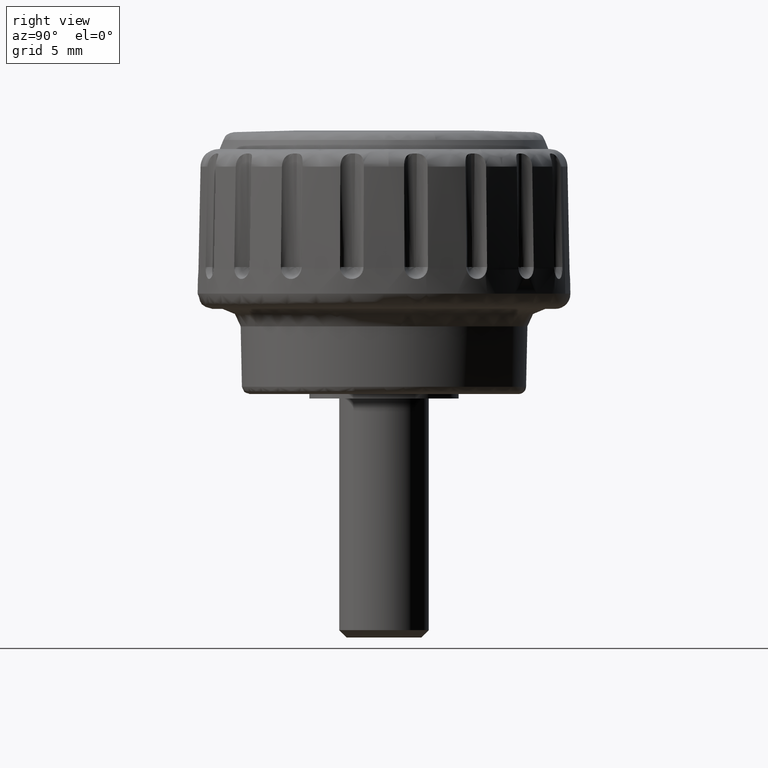
[diagram: clean part render]
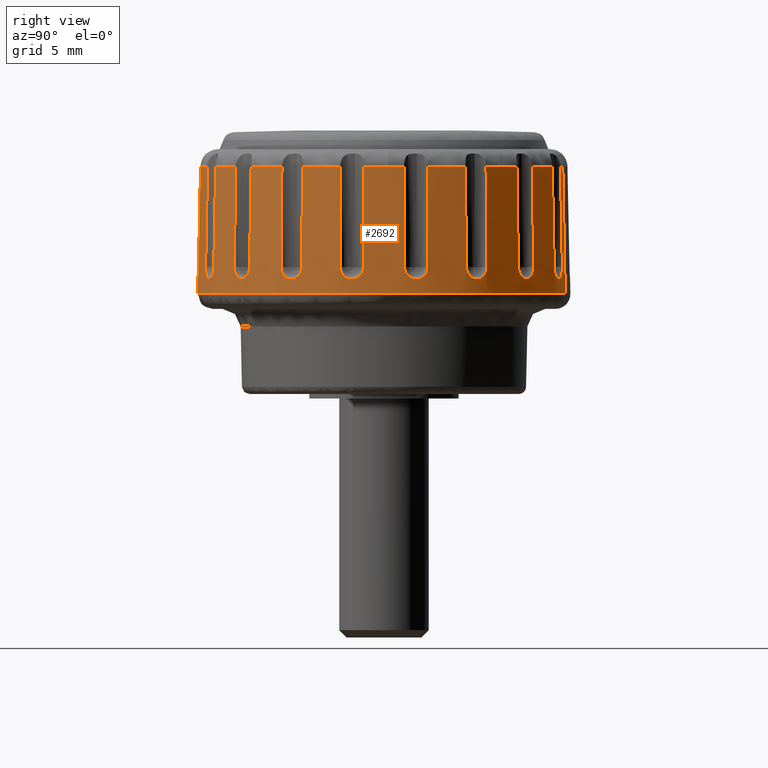
[diagram: same view with one face highlighted and labeled with its STEP entity id]
A machine part, right view. The second image highlights one B-rep face of the part: STEP entity #2692.
In plain terms, the highlighted face is a freeform B-spline surface patch.
Its self-contained STEP definition (entity closure, byte-faithful):
#1936=CARTESIAN_POINT('',(2.873227591302566,11.962629946308075,15.736891026403132));
#1937=CARTESIAN_POINT('',(14.170178331358636,9.249287586843673,15.736891026403127));
#1938=CARTESIAN_POINT('',(12.107375769124920,-2.184354368900753,15.736891026403130));
#1939=CARTESIAN_POINT('',(9.923021400224167,-14.291730138025677,15.736891026403129));
#1940=CARTESIAN_POINT('',(-2.184354368900753,-12.107375769124920,15.736891026403130));
#1941=CARTESIAN_POINT('',(2.915477382514702,12.138536170760844,6.802327856064655));
#1942=CARTESIAN_POINT('',(14.378545770732707,9.385295075630175,6.802327856064655));
#1943=CARTESIAN_POINT('',(12.285410429491140,-2.216474524052658,6.802327856064654));
#1944=CARTESIAN_POINT('',(10.068935905438483,-14.501884953543797,6.802327856064656));
#1945=CARTESIAN_POINT('',(-2.216474524052658,-12.285410429491140,6.802327856064654));
#1953=(BOUNDED_SURFACE()B_SPLINE_SURFACE(2,1,((#1936,#1941),(#1937,#1942),(#1938,#1943),(#1939,#1944),(#1940,#1945)),.UNSPECIFIED.,.F.,.F.,.U.)B_SPLINE_SURFACE_WITH_KNOTS((3,2,3),(2,2),(0.0,19.856407550699821,40.540165416012130),(0.0,8.936394524047572),.UNSPECIFIED.)GEOMETRIC_REPRESENTATION_ITEM()RATIONAL_B_SPLINE_SURFACE(((0.977505800795127,0.977505800795127),(0.718822509939086,0.718822509939086),(1.0,1.0),(0.707106781186548,0.707106781186548),(1.0,1.0)))REPRESENTATION_ITEM('')SURFACE());
#1954=CARTESIAN_POINT('',(2.914446907344739,12.134245762524371,7.020244547538093));
#1955=VERTEX_POINT('',#1954);
#1956=CARTESIAN_POINT('',(12.479339775979300,0.0,7.020244063727410));
#1957=VERTEX_POINT('',#1956);
#1958=CARTESIAN_POINT('',(2.914446907344739,12.134245762524371,7.020244547538093));
#1959=CARTESIAN_POINT('',(3.399607738062294,12.017725771063381,7.020244537737592));
#1960=CARTESIAN_POINT('',(4.501472905241594,11.682088640484240,7.020244513381774));
#1961=CARTESIAN_POINT('',(5.883540017650521,11.041720504952989,7.020244476351719));
#1962=CARTESIAN_POINT('',(7.229596170204035,10.204431316443181,7.020244433976460));
#1963=CARTESIAN_POINT('',(8.355720520706905,9.314868220118271,7.020244392939082));
#1964=CARTESIAN_POINT('',(9.480392177079299,8.165291485618457,7.020244344240276));
#1965=CARTESIAN_POINT('',(10.439937198702550,6.901208390603930,7.020244294322382));
#1966=CARTESIAN_POINT('',(11.302476836715829,5.390961429123231,7.020244238404437));
#1967=CARTESIAN_POINT('',(11.940890242762510,3.771421326651106,7.020244182194873));
#1968=CARTESIAN_POINT('',(12.375885019765819,1.930738148909831,7.020244122118737));
#1969=CARTESIAN_POINT('',(12.479391814794621,0.694204887034695,7.020244084234085));
#1970=CARTESIAN_POINT('',(12.479339775979300,0.0,7.020244063727410));
#1971=B_SPLINE_CURVE_WITH_KNOTS('',3,(#1958,#1959,#1960,#1961,#1962,#1963,#1964,#1965,#1966,#1967,#1968,#1969,#1970),.UNSPECIFIED.,.F.,.U.,(4,1,1,1,1,1,1,1,1,1,4),(8.677429E-009,1.496875263589283,3.449327597702851,4.555718106972531,6.247845455896339,7.744724477764368,9.371752698050724,10.998799878484180,12.951253760375209,14.578297637709820,16.660907703368299),.UNSPECIFIED.);
#1972=EDGE_CURVE('',#1955,#1957,#1971,.T.);
#1973=ORIENTED_EDGE('',*,*,#1972,.F.);
#1974=CARTESIAN_POINT('',(2.874232948370810,11.966815690223079,15.524290171400450));
#1975=VERTEX_POINT('',#1974);
#1976=CARTESIAN_POINT('',(2.874232948370810,11.966815690223079,15.524290171400450));
#1977=CARTESIAN_POINT('',(2.914446907344739,12.134245762524371,7.020244547538093));
#1978=QUASI_UNIFORM_CURVE('',1,(#1976,#1977),.UNSPECIFIED.,.F.,.U.);
#1979=EDGE_CURVE('',#1975,#1955,#1978,.T.);
#1980=ORIENTED_EDGE('',*,*,#1979,.F.);
#1981=CARTESIAN_POINT('',(3.448637072081465,11.814093079763900,15.524289876473100));
#1982=VERTEX_POINT('',#1981);
#1983=CARTESIAN_POINT('',(2.874232948370810,11.966815690223079,15.524290171400450));
#1984=CARTESIAN_POINT('',(3.066893409246585,11.920542116297460,15.524290073167700));
#1985=CARTESIAN_POINT('',(3.258435700242908,11.869614686684690,15.524289974820441));
#1986=CARTESIAN_POINT('',(3.448637072081465,11.814093079763900,15.524289876473100));
#1987=B_SPLINE_CURVE_WITH_KNOTS('',3,(#1983,#1984,#1985,#1986),.UNSPECIFIED.,.F.,.U.,(4,4),(1.234168E-011,0.594419084137168),.UNSPECIFIED.);
#1988=EDGE_CURVE('',#1975,#1982,#1987,.T.);
#1989=ORIENTED_EDGE('',*,*,#1988,.T.);
#1990=CARTESIAN_POINT('',(3.495302366670960,11.942304922920821,8.800002999999810));
#1991=VERTEX_POINT('',#1990);
#1992=CARTESIAN_POINT('',(3.495302366670960,11.942304922920821,8.800002999999810));
#1993=CARTESIAN_POINT('',(3.448637072081465,11.814093079763900,15.524289876473100));
#1994=QUASI_UNIFORM_CURVE('',1,(#1992,#1993),.UNSPECIFIED.,.F.,.U.);
#1995=EDGE_CURVE('',#1991,#1982,#1994,.T.);
#1996=ORIENTED_EDGE('',*,*,#1995,.F.);
#1997=CARTESIAN_POINT('',(4.998808680543220,11.395073377640021,8.800002999999810));
#1998=VERTEX_POINT('',#1997);
#1999=CARTESIAN_POINT('',(3.495302366670960,11.942304922920821,8.800002999999810));
#2000=CARTESIAN_POINT('',(3.495669095978264,11.943312503411690,8.747157524379992));
#2001=CARTESIAN_POINT('',(3.501015047893226,11.942847129943679,8.695204157489473));
#2002=CARTESIAN_POINT('',(3.516185973837361,11.940003938598540,8.618556361589670));
#2003=CARTESIAN_POINT('',(3.522443177315104,11.938695673080121,8.593222296505969));
#2004=CARTESIAN_POINT('',(3.537407681510372,11.935331053380310,8.542993820214605));
#2005=CARTESIAN_POINT('',(3.546156777113873,11.933263597441821,8.518030832137926));
#2006=CARTESIAN_POINT('',(3.575537821462716,11.926040819450071,8.445420545668039));
#2007=CARTESIAN_POINT('',(3.599398347077408,11.919850751685329,8.399506375009811));
#2008=CARTESIAN_POINT('',(3.655532519165203,11.904596265108591,8.312609392020473));
#2009=CARTESIAN_POINT('',(3.688100196912274,11.895440933273020,8.271465663519669));
#2010=CARTESIAN_POINT('',(3.759011031629244,11.874790099617989,8.197699241741427));
#2011=CARTESIAN_POINT('',(3.797599929167139,11.863232620208260,8.164588295599371));
#2012=CARTESIAN_POINT('',(3.860253994152228,11.843867250514950,8.120714271646786));
#2013=CARTESIAN_POINT('',(3.881937038011462,11.837070901632011,8.107086085148756));
#2014=CARTESIAN_POINT('',(3.925944183035346,11.823075237180140,8.082381622929043));
#2015=CARTESIAN_POINT('',(3.970824881411335,11.808605386211360,8.060056669934934));
#2016=CARTESIAN_POINT('',(4.017415223070569,11.793166471850521,8.042419778179699));
#2017=CARTESIAN_POINT('',(4.064867504720312,11.777221745595110,8.027159505494527));
#2018=CARTESIAN_POINT('',(4.089131037161716,11.768959590767000,8.020696974467969));
#2019=CARTESIAN_POINT('',(4.162447605741887,11.743647687692940,8.005191636593210));
#2020=CARTESIAN_POINT('',(4.211722788912519,11.726182675100651,8.000003499474149));
#2021=CARTESIAN_POINT('',(4.311062040074566,11.690026243388100,8.000002500596830));
#2022=CARTESIAN_POINT('',(4.359746777671903,11.671837067721500,8.005189027227013));
#2023=CARTESIAN_POINT('',(4.431367406313970,11.644419531913520,8.020427800111458));
#2024=CARTESIAN_POINT('',(4.455004974283636,11.635258374885570,8.026759811615618));
#2025=CARTESIAN_POINT('',(4.501801552856540,11.616901812122540,8.041985327112938));
#2026=CARTESIAN_POINT('',(4.525019384930421,11.607681574465120,8.050920390209479));
#2027=CARTESIAN_POINT('',(4.592449479143323,11.580589558203799,8.081019574435137));
#2028=CARTESIAN_POINT('',(4.634953326693080,11.563088372775679,8.105574582388540));
#2029=CARTESIAN_POINT('',(4.715166970218690,11.529342742830201,8.163580593571455));
#2030=CARTESIAN_POINT('',(4.753007352857018,11.513032361472829,8.197327670971736));
#2031=CARTESIAN_POINT('',(4.820648321064246,11.483255855820669,8.271038491890975));
#2032=CARTESIAN_POINT('',(4.850904710452025,11.469601091110761,8.311260221877220));
#2033=CARTESIAN_POINT('',(4.890864165298450,11.451148051377469,8.376772121108276));
#2034=CARTESIAN_POINT('',(4.903241191412278,11.445351382540011,8.399459260152321));
#2035=CARTESIAN_POINT('',(4.925636260222671,11.434714480467139,8.445579380772841));
#2036=CARTESIAN_POINT('',(4.945826072052276,11.424963394669829,8.492684682820219));
#2037=CARTESIAN_POINT('',(4.961681867195978,11.416993000446730,8.541733461921730));
#2038=CARTESIAN_POINT('',(4.975344819738416,11.409940284396580,8.591768626921738));
#2039=CARTESIAN_POINT('',(4.981098355296111,11.406862105200281,8.617395477364466));
#2040=CARTESIAN_POINT('',(4.994780849955439,11.399167678839049,8.694902635293731));
#2041=CARTESIAN_POINT('',(4.999175406295649,11.396080948364110,8.747158036628029));
#2042=CARTESIAN_POINT('',(4.998808680543220,11.395073377640021,8.800002999999810));
#2043=B_SPLINE_CURVE_WITH_KNOTS('',3,(#1999,#2000,#2001,#2002,#2003,#2004,#2005,#2006,#2007,#2008,#2009,#2010,#2011,#2012,#2013,#2014,#2015,#2016,#2017,#2018,#2019,#2020,#2021,#2022,#2023,#2024,#2025,#2026,#2027,#2028,#2029,#2030,#2031,#2032,#2033,#2034,#2035,#2036,#2037,#2038,#2039,#2040,#2041,#2042),.UNSPECIFIED.,.F.,.U.,(4,2,2,2,2,2,2,2,1,2,2,2,2,2,2,2,2,2,2,1,2,2,4),(0.0,0.062499999999995,0.093749999999994,0.124999999999993,0.187499999999991,0.249999999999990,0.312499999999989,0.343749999999989,0.374999999999988,0.406249999999988,0.437499999999987,0.499999999999987,0.562499999999986,0.593749999999986,0.624999999999985,0.687499999999987,0.749999999999988,0.812499999999989,0.843749999999991,0.874999999999992,0.906249999999993,0.937499999999995,1.0),.UNSPECIFIED.);
#2044=EDGE_CURVE('',#1991,#1998,#2043,.T.);
#2045=ORIENTED_EDGE('',*,*,#2044,.T.);
#2046=CARTESIAN_POINT('',(4.952143385953650,11.266861534483120,15.524289876473100));
#2047=VERTEX_POINT('',#2046);
#2048=CARTESIAN_POINT('',(4.952143385953650,11.266861534483120,15.524289876473100));
#2049=CARTESIAN_POINT('',(4.998808680543220,11.395073377640021,8.800002999999810));
#2050=QUASI_UNIFORM_CURVE('',1,(#2048,#2049),.UNSPECIFIED.,.F.,.U.);
#2051=EDGE_CURVE('',#2047,#1998,#2050,.T.);
#2052=ORIENTED_EDGE('',*,*,#2051,.F.);
#2053=CARTESIAN_POINT('',(7.281316616807300,9.922112742660501,15.524289876473100));
#2054=VERTEX_POINT('',#2053);
#2055=CARTESIAN_POINT('',(4.952143385953650,11.266861534483120,15.524289876473100));
#2056=CARTESIAN_POINT('',(5.774545357012277,10.905477979110691,15.524289876473169));
#2057=CARTESIAN_POINT('',(6.557165075500191,10.453670545351221,15.524289876473039));
#2058=CARTESIAN_POINT('',(7.281316616807300,9.922112742660501,15.524289876473100));
#2059=B_SPLINE_CURVE_WITH_KNOTS('',3,(#2055,#2056,#2057,#2058),.UNSPECIFIED.,.F.,.U.,(4,4),(2.108393E-010,2.694879502081228),.UNSPECIFIED.);
#2060=EDGE_CURVE('',#2047,#2054,#2059,.T.);
#2061=ORIENTED_EDGE('',*,*,#2060,.T.);
#2062=CARTESIAN_POINT('',(7.369018682752410,10.026631994828620,8.800002999999810));
#2063=VERTEX_POINT('',#2062);
#2064=CARTESIAN_POINT('',(7.369018682752410,10.026631994828620,8.800002999999810));
#2065=CARTESIAN_POINT('',(7.281316616807300,9.922112742660501,15.524289876473100));
#2066=QUASI_UNIFORM_CURVE('',1,(#2064,#2065),.UNSPECIFIED.,.F.,.U.);
#2067=EDGE_CURVE('',#2063,#2054,#2066,.T.);
#2068=ORIENTED_EDGE('',*,*,#2067,.F.);
#2069=CARTESIAN_POINT('',(8.594688259653870,8.998173104905391,8.800002999999810));
#2070=VERTEX_POINT('',#2069);
#2071=CARTESIAN_POINT('',(7.369018682752410,10.026631994828620,8.800002999999810));
#2072=CARTESIAN_POINT('',(7.369707908400160,10.027453381970510,8.747157524379949));
#2073=CARTESIAN_POINT('',(7.374572292866011,10.025187650716161,8.695204157489485));
#2074=CARTESIAN_POINT('',(7.387855871314848,10.017327162523850,8.618556361589622));
#2075=CARTESIAN_POINT('',(7.393288266089595,10.013957705439831,8.593222296505910));
#2076=CARTESIAN_POINT('',(7.406199532543651,10.005677835266489,8.542993820214505));
#2077=CARTESIAN_POINT('',(7.413713881544318,10.000742695245069,8.518030832137987));
#2078=CARTESIAN_POINT('',(7.438852696545972,9.983906595065390,8.445420545668053));
#2079=CARTESIAN_POINT('',(7.459157128530090,9.969929053674138,8.399506375009789));
#2080=CARTESIAN_POINT('',(7.506688654129601,9.936395507621144,8.312609392020390));
#2081=CARTESIAN_POINT('',(7.534160952678018,9.916653508043607,8.271465663519704));
#2082=CARTESIAN_POINT('',(7.593732339708849,9.872995138191637,8.197699241741418));
#2083=CARTESIAN_POINT('',(7.626041151205290,9.848936479808724,8.164588295599353));
#2084=CARTESIAN_POINT('',(7.678293367215979,9.809310032522975,8.120714271646742));
#2085=CARTESIAN_POINT('',(7.696344275307574,9.795507515860965,8.107086085148772));
#2086=CARTESIAN_POINT('',(7.732910665586616,9.767304563204130,8.082381622929042));
#2087=CARTESIAN_POINT('',(7.770135746163999,9.738357248133768,8.060056669934891));
#2088=CARTESIAN_POINT('',(7.808635926718623,9.707914578904044,8.042419778179724));
#2089=CARTESIAN_POINT('',(7.847773068065181,9.676701801130403,8.027159505494545));
#2090=CARTESIAN_POINT('',(7.867747507076044,9.660639298363455,8.020696974467969));
#2091=CARTESIAN_POINT('',(7.927985364834942,9.611778146532775,8.005191636593208));
#2092=CARTESIAN_POINT('',(7.968315504738261,9.578513297867445,8.000003499474156));
#2093=CARTESIAN_POINT('',(8.049297638053151,9.510561340872911,8.000002500596830));
#2094=CARTESIAN_POINT('',(8.088825262249795,9.476817945790019,8.005189027227019));
#2095=CARTESIAN_POINT('',(8.146749288954098,9.426558192037900,8.020427800111461));
#2096=CARTESIAN_POINT('',(8.165828036908785,9.409864995996010,8.026759811615602));
#2097=CARTESIAN_POINT('',(8.203524122244589,9.376610096913950,8.041985327112919));
#2098=CARTESIAN_POINT('',(8.222188240710004,9.360004941371726,8.050920390209480));
#2099=CARTESIAN_POINT('',(8.276285787376068,9.311484323121613,8.081019574435144));
#2100=CARTESIAN_POINT('',(8.310240581325077,9.280501416288951,8.105574582388536));
#2101=CARTESIAN_POINT('',(8.374075065041845,9.221356214990134,8.163580593571439));
#2102=CARTESIAN_POINT('',(8.404054914405347,9.193087296892864,8.197327670971717));
#2103=CARTESIAN_POINT('',(8.457432468361567,9.141971960617843,8.271038491890913));
#2104=CARTESIAN_POINT('',(8.481193969617699,9.118792384346463,8.311260221877152));
#2105=CARTESIAN_POINT('',(8.512432263173128,9.087785260604251,8.376772121108163));
#2106=CARTESIAN_POINT('',(8.522080285773033,9.078104981427090,8.399459260152337));
#2107=CARTESIAN_POINT('',(8.539486731904626,9.060449998396875,8.445579380772831));
#2108=CARTESIAN_POINT('',(8.555123881333945,9.044381652692863,8.492684682820199));
#2109=CARTESIAN_POINT('',(8.567297419652698,9.031468930729012,8.541733461921634));
#2110=CARTESIAN_POINT('',(8.577724224380660,9.020168540513369,8.591768626921608));
#2111=CARTESIAN_POINT('',(8.582077979997752,9.015308173181088,8.617395477364502));
#2112=CARTESIAN_POINT('',(8.592303670456175,9.003398088723833,8.694902635293719));
#2113=CARTESIAN_POINT('',(8.595377478620826,8.998994484085262,8.747158036628038));
#2114=CARTESIAN_POINT('',(8.594688259653870,8.998173104905391,8.800002999999810));
#2115=B_SPLINE_CURVE_WITH_KNOTS('',3,(#2071,#2072,#2073,#2074,#2075,#2076,#2077,#2078,#2079,#2080,#2081,#2082,#2083,#2084,#2085,#2086,#2087,#2088,#2089,#2090,#2091,#2092,#2093,#2094,#2095,#2096,#2097,#2098,#2099,#2100,#2101,#2102,#2103,#2104,#2105,#2106,#2107,#2108,#2109,#2110,#2111,#2112,#2113,#2114),.UNSPECIFIED.,.F.,.U.,(4,2,2,2,2,2,2,2,1,2,2,2,2,2,2,2,2,2,2,1,2,2,4),(0.0,0.062500000000001,0.093750000000001,0.125000000000001,0.187500000000004,0.250000000000007,0.312500000000009,0.343750000000010,0.375000000000010,0.406250000000011,0.437500000000011,0.500000000000012,0.562500000000013,0.593750000000012,0.625000000000012,0.687500000000009,0.750000000000006,0.812500000000004,0.843750000000004,0.875000000000003,0.906250000000003,0.937500000000003,1.0),.UNSPECIFIED.);
#2116=EDGE_CURVE('',#2063,#2070,#2115,.T.);
#2117=ORIENTED_EDGE('',*,*,#2116,.T.);
#2118=CARTESIAN_POINT('',(8.506986193708729,8.893653852737311,15.524289876473100));
#2119=VERTEX_POINT('',#2118);
#2120=CARTESIAN_POINT('',(8.506986193708729,8.893653852737311,15.524289876473100));
#2121=CARTESIAN_POINT('',(8.594688259653870,8.998173104905391,8.800002999999810));
#2122=QUASI_UNIFORM_CURVE('',1,(#2120,#2121),.UNSPECIFIED.,.F.,.U.);
#2123=EDGE_CURVE('',#2119,#2070,#2122,.T.);
#2124=ORIENTED_EDGE('',*,*,#2123,.F.);
#2125=CARTESIAN_POINT('',(10.235761916757779,6.833379174003980,15.524289876473100));
#2126=VERTEX_POINT('',#2125);
#2127=CARTESIAN_POINT('',(8.506986193708729,8.893653852737311,15.524289876473100));
#2128=CARTESIAN_POINT('',(9.156220774710198,8.272812477031618,15.524289876473180));
#2129=CARTESIAN_POINT('',(9.737051783269193,7.580525960131059,15.524289876473240));
#2130=CARTESIAN_POINT('',(10.235761916757779,6.833379174003980,15.524289876473100));
#2131=B_SPLINE_CURVE_WITH_KNOTS('',3,(#2127,#2128,#2129,#2130),.UNSPECIFIED.,.F.,.U.,(4,4),(2.111249E-010,2.694879502081203),.UNSPECIFIED.);
#2132=EDGE_CURVE('',#2119,#2126,#2131,.T.);
#2133=ORIENTED_EDGE('',*,*,#2132,.T.);
#2134=CARTESIAN_POINT('',(10.353922590560940,6.901599270831820,8.800002999999810));
#2135=VERTEX_POINT('',#2134);
#2136=CARTESIAN_POINT('',(10.353922590560940,6.901599270831820,8.800002999999810));
#2137=CARTESIAN_POINT('',(10.235761916757779,6.833379174003980,15.524289876473100));
#2138=QUASI_UNIFORM_CURVE('',1,(#2136,#2137),.UNSPECIFIED.,.F.,.U.);
#2139=EDGE_CURVE('',#2135,#2126,#2138,.T.);
#2140=ORIENTED_EDGE('',*,*,#2139,.F.);
#2141=CARTESIAN_POINT('',(11.153921590561000,5.515960356827460,8.800002999999810));
#2142=VERTEX_POINT('',#2141);
#2143=CARTESIAN_POINT('',(10.353922590560940,6.901599270831820,8.800002999999810));
#2144=CARTESIAN_POINT('',(10.354851181764220,6.902135393213000,8.747157524380036));
#2145=CARTESIAN_POINT('',(10.358647282222440,6.898342584801408,8.695204157489465));
#2146=CARTESIAN_POINT('',(10.368441317570280,6.886412890646386,8.618556361589716));
#2147=CARTESIAN_POINT('',(10.372393676658440,6.881388648249114,8.593222296506037));
#2148=CARTESIAN_POINT('',(10.381694416086900,6.869192202143057,8.542993820214701));
#2149=CARTESIAN_POINT('',(10.387067677095439,6.861984628760082,8.518030832137853));
#2150=CARTESIAN_POINT('',(10.404932150651289,6.837565888548553,8.445420545668023));
#2151=CARTESIAN_POINT('',(10.419231474846031,6.817486771309103,8.399506375009839));
#2152=CARTESIAN_POINT('',(10.452427350479290,6.769718806336356,8.312609392020553));
#2153=CARTESIAN_POINT('',(10.471490705176290,6.741771315526676,8.271465663519654));
#2154=CARTESIAN_POINT('',(10.512537456064990,6.680371253210895,8.197699241741447));
#2155=CARTESIAN_POINT('',(10.534669262026190,6.646713245123804,8.164588295599417));
#2156=CARTESIAN_POINT('',(10.570217240650949,6.591605254612426,8.120714271646836));
#2157=CARTESIAN_POINT('',(10.582458807056200,6.572461357384078,8.107086085148756));
#2158=CARTESIAN_POINT('',(10.607173996260279,6.533452808843954,8.082381622929043));
#2159=CARTESIAN_POINT('',(10.632253564937750,6.493519503086408,8.060056669934918));
#2160=CARTESIAN_POINT('',(10.658019894410669,6.451744914182886,8.042419778179728));
#2161=CARTESIAN_POINT('',(10.684121378604949,6.409028806542081,8.027159505494558));
#2162=CARTESIAN_POINT('',(10.697397512049310,6.387103330727235,8.020696974467981));
#2163=CARTESIAN_POINT('',(10.737291084325109,6.320586306164531,8.005191636593223));
#2164=CARTESIAN_POINT('',(10.763811770879290,6.275533853112103,8.000003499474151));
#2165=CARTESIAN_POINT('',(10.816669145900290,6.183982379713186,8.000002500596837));
#2166=CARTESIAN_POINT('',(10.842272041852540,6.138754716660458,8.005189027227017));
#2167=CARTESIAN_POINT('',(10.879512974130989,6.071714813021650,8.020427800111460));
#2168=CARTESIAN_POINT('',(10.891731723495040,6.049503023773815,8.026759811615611));
#2169=CARTESIAN_POINT('',(10.915780611367291,6.005360819992045,8.041985327112931));
#2170=CARTESIAN_POINT('',(10.927639848084169,5.983373573389522,8.050920390209438));
#2171=CARTESIAN_POINT('',(10.961879884680769,5.919276655799567,8.081019574435100));
#2172=CARTESIAN_POINT('',(10.983190175759420,5.878549023385364,8.105574582388535));
#2173=CARTESIAN_POINT('',(11.022946118834540,5.801138034899981,8.163580593571485));
#2174=CARTESIAN_POINT('',(11.041449422634329,5.764320228790346,8.197327670971651));
#2175=CARTESIAN_POINT('',(11.074125441563719,5.698031325829155,8.271038491890941));
#2176=CARTESIAN_POINT('',(11.088526066954360,5.668122736988709,8.311260221877232));
#2177=CARTESIAN_POINT('',(11.107275399987930,5.628301445977239,8.376772121108340));
#2178=CARTESIAN_POINT('',(11.113030725158570,5.615905140995028,8.399459260152206));
#2179=CARTESIAN_POINT('',(11.123349074316151,5.593361528520672,8.445579380772767));
#2180=CARTESIAN_POINT('',(11.132547465392751,5.572913991616832,8.492684682859542));
#2181=CARTESIAN_POINT('',(11.139570463454509,5.556616417681085,8.541733461921734));
#2182=CARTESIAN_POINT('',(11.145503493834569,5.542431347135945,8.591768626921791));
#2183=CARTESIAN_POINT('',(11.147932342329030,5.536375023699403,8.617395477364363));
#2184=CARTESIAN_POINT('',(11.153467859402170,5.521685813105747,8.694902635293699));
#2185=CARTESIAN_POINT('',(11.154850172763149,5.516496474011799,8.747158036627962));
#2186=CARTESIAN_POINT('',(11.153921590561000,5.515960356827460,8.800002999999810));
#2187=B_SPLINE_CURVE_WITH_KNOTS('',3,(#2143,#2144,#2145,#2146,#2147,#2148,#2149,#2150,#2151,#2152,#2153,#2154,#2155,#2156,#2157,#2158,#2159,#2160,#2161,#2162,#2163,#2164,#2165,#2166,#2167,#2168,#2169,#2170,#2171,#2172,#2173,#2174,#2175,#2176,#2177,#2178,#2179,#2180,#2181,#2182,#2183,#2184,#2185,#2186),.UNSPECIFIED.,.F.,.U.,(4,2,2,2,2,2,2,2,1,2,2,2,2,2,2,2,2,2,2,1,2,2,4),(0.0,0.062500000000001,0.093750000000001,0.125000000000002,0.187500000000001,0.250000000000000,0.312499999999999,0.343749999999998,0.374999999999998,0.406249999999998,0.437499999999998,0.499999999999999,0.562499999999999,0.593749999999999,0.624999999999998,0.687499999999999,0.749999999999999,0.812499999999999,0.843749999999999,0.874999999999999,0.906249999999999,0.937500000000000,1.0),.UNSPECIFIED.);
#2188=EDGE_CURVE('',#2135,#2142,#2187,.T.);
#2189=ORIENTED_EDGE('',*,*,#2188,.T.);
#2190=CARTESIAN_POINT('',(11.035760916757820,5.447740259999610,15.524289876473100));
#2191=VERTEX_POINT('',#2190);
#2192=CARTESIAN_POINT('',(11.035760916757820,5.447740259999610,15.524289876473100));
#2193=CARTESIAN_POINT('',(11.153921590561000,5.515960356827460,8.800002999999810));
#2194=QUASI_UNIFORM_CURVE('',1,(#2192,#2193),.UNSPECIFIED.,.F.,.U.);
#2195=EDGE_CURVE('',#2191,#2142,#2194,.T.);
#2196=ORIENTED_EDGE('',*,*,#2195,.F.);
#2197=CARTESIAN_POINT('',(11.955623265790200,2.920439227026650,15.524289876473100));
#2198=VERTEX_POINT('',#2197);
#2199=CARTESIAN_POINT('',(11.035760916757820,5.447740259999610,15.524289876473100));
#2200=CARTESIAN_POINT('',(11.433499298038109,4.642287310838047,15.524289876473169));
#2201=CARTESIAN_POINT('',(11.742535833423901,3.793099801737978,15.524289876473130));
#2202=CARTESIAN_POINT('',(11.955623265790200,2.920439227026650,15.524289876473100));
#2203=B_SPLINE_CURVE_WITH_KNOTS('',3,(#2199,#2200,#2201,#2202),.UNSPECIFIED.,.F.,.U.,(4,4),(2.121507E-010,2.694879502081215),.UNSPECIFIED.);
#2204=EDGE_CURVE('',#2191,#2198,#2203,.T.);
#2205=ORIENTED_EDGE('',*,*,#2204,.T.);
#2206=CARTESIAN_POINT('',(12.089990626324900,2.944131818015480,8.800002999999810));
#2207=VERTEX_POINT('',#2206);
#2208=CARTESIAN_POINT('',(12.089990626324900,2.944131818015480,8.800002999999810));
#2209=CARTESIAN_POINT('',(11.955623265790200,2.920439227026650,15.524289876473100));
#2210=QUASI_UNIFORM_CURVE('',1,(#2208,#2209),.UNSPECIFIED.,.F.,.U.);
#2211=EDGE_CURVE('',#2207,#2198,#2210,.T.);
#2212=ORIENTED_EDGE('',*,*,#2211,.F.);
#2213=CARTESIAN_POINT('',(12.367827363295619,1.368441382811472,8.800002999999810));
#2214=VERTEX_POINT('',#2213);
#2215=CARTESIAN_POINT('',(12.089990626324900,2.944131818015480,8.800002999999810));
#2216=CARTESIAN_POINT('',(12.091046581280001,2.944318011364476,8.747157524380002));
#2217=CARTESIAN_POINT('',(12.093316531991899,2.939455594464785,8.695204157489478));
#2218=CARTESIAN_POINT('',(12.098439719031250,2.924895591525663,8.618556361589675));
#2219=CARTESIAN_POINT('',(12.100435329596269,2.918822561598097,8.593222296505973));
#2220=CARTESIAN_POINT('',(12.105003735559800,2.904180610960054,8.542993820214610));
#2221=CARTESIAN_POINT('',(12.107587813997601,2.895569943938059,8.518030832137910));
#2222=CARTESIAN_POINT('',(12.116023226945270,2.866513824146375,8.445420545668032));
#2223=CARTESIAN_POINT('',(12.122592733817211,2.842754968934004,8.399506375009821));
#2224=CARTESIAN_POINT('',(12.137449046963960,2.786514106597207,8.312609392020486));
#2225=CARTESIAN_POINT('',(12.145804135887820,2.753732004408203,8.271465663519662));
#2226=CARTESIAN_POINT('',(12.163375406691721,2.681996003312240,8.197699241741422));
#2227=CARTESIAN_POINT('',(12.172660784688130,2.642798298035515,8.164588295599385));
#2228=CARTESIAN_POINT('',(12.187216915072581,2.578855601261422,8.120714271646792));
#2229=CARTESIAN_POINT('',(12.192172626216591,2.556679360006469,8.107086085148762));
#2230=CARTESIAN_POINT('',(12.202055597770389,2.511570222241835,8.082381622929043));
#2231=CARTESIAN_POINT('',(12.211964688430429,2.465467471824254,8.060056669934928));
#2232=CARTESIAN_POINT('',(12.221889367216709,2.417399595195940,8.042419778179720));
#2233=CARTESIAN_POINT('',(12.231806970048011,2.368332350692027,8.027159505494543));
#2234=CARTESIAN_POINT('',(12.236783500297561,2.343188437798165,8.020696974467978));
#2235=CARTESIAN_POINT('',(12.251521033507380,2.267038475352408,8.005191636593219));
#2236=CARTESIAN_POINT('',(12.261033480510360,2.215632408654371,8.000003499474152));
#2237=CARTESIAN_POINT('',(12.279390717718130,2.111523877698843,8.000002500596835));
#2238=CARTESIAN_POINT('',(12.287980798315621,2.060267070329668,8.005189027227008));
#2239=CARTESIAN_POINT('',(12.300046830117770,1.984533018586640,8.020427800111452));
#2240=CARTESIAN_POINT('',(12.303931819388341,1.959481705727251,8.026759811615616));
#2241=CARTESIAN_POINT('',(12.311432858995850,1.909776398491409,8.041985327112931));
#2242=CARTESIAN_POINT('',(12.315056814992531,1.885059047265927,8.050920390209463));
#2243=CARTESIAN_POINT('',(12.325309487776940,1.813116864567312,8.081019574435123));
#2244=CARTESIAN_POINT('',(12.331404940374719,1.767556860116587,8.105574582388549));
#2245=CARTESIAN_POINT('',(12.342287189338039,1.681216992120559,8.163580593571474));
#2246=CARTESIAN_POINT('',(12.347082176056309,1.640291068788143,8.197327670971708));
#2247=CARTESIAN_POINT('',(12.355115449829221,1.566824019158020,8.271038491890950));
#2248=CARTESIAN_POINT('',(12.358418271401630,1.533793834966449,8.311260221877204));
#2249=CARTESIAN_POINT('',(12.362417197638770,1.489961412081421,8.376772121108269));
#2250=CARTESIAN_POINT('',(12.363585648225120,1.476344258624803,8.399459260152273));
#2251=CARTESIAN_POINT('',(12.365571355217639,1.451631109079056,8.445579380772802));
#2252=CARTESIAN_POINT('',(12.367221573117490,1.429270676238424,8.492684682820226));
#2253=CARTESIAN_POINT('',(12.368246906813971,1.411553957735127,8.541733461921702));
#2254=CARTESIAN_POINT('',(12.368970551820070,1.396195135717594,8.591768626921720));
#2255=CARTESIAN_POINT('',(12.369181538217530,1.389673338164938,8.617395477364429));
#2256=CARTESIAN_POINT('',(12.369359216850819,1.373976737022194,8.694902635293715));
#2257=CARTESIAN_POINT('',(12.368883308015020,1.368627574355636,8.747158036628013));
#2258=CARTESIAN_POINT('',(12.367827363295619,1.368441382811470,8.800002999999810));
#2259=B_SPLINE_CURVE_WITH_KNOTS('',3,(#2215,#2216,#2217,#2218,#2219,#2220,#2221,#2222,#2223,#2224,#2225,#2226,#2227,#2228,#2229,#2230,#2231,#2232,#2233,#2234,#2235,#2236,#2237,#2238,#2239,#2240,#2241,#2242,#2243,#2244,#2245,#2246,#2247,#2248,#2249,#2250,#2251,#2252,#2253,#2254,#2255,#2256,#2257,#2258),.UNSPECIFIED.,.F.,.U.,(4,2,2,2,2,2,2,2,1,2,2,2,2,2,2,2,2,2,2,1,2,2,4),(0.0,0.062499999999997,0.093749999999996,0.124999999999995,0.187499999999994,0.249999999999994,0.312499999999993,0.343749999999994,0.374999999999994,0.406249999999994,0.437499999999995,0.499999999999996,0.562499999999996,0.593749999999996,0.624999999999996,0.687499999999996,0.749999999999996,0.812499999999995,0.843749999999996,0.874999999999997,0.906249999999998,0.937499999999999,1.0),.UNSPECIFIED.);
#2260=EDGE_CURVE('',#2207,#2214,#2259,.T.);
#2261=ORIENTED_EDGE('',*,*,#2260,.T.);
#2262=CARTESIAN_POINT('',(12.233460002760941,1.344748791822618,15.524289876473100));
#2263=VERTEX_POINT('',#2262);
#2264=CARTESIAN_POINT('',(12.233460002760941,1.344748791822618,15.524289876473100));
#2265=CARTESIAN_POINT('',(12.367827363295619,1.368441382811472,8.800002999999810));
#2266=QUASI_UNIFORM_CURVE('',1,(#2264,#2265),.UNSPECIFIED.,.F.,.U.);
#2267=EDGE_CURVE('',#2263,#2214,#2266,.T.);
#2268=ORIENTED_EDGE('',*,*,#2267,.F.);
#2269=CARTESIAN_POINT('',(12.303261313692831,0.309279804954855,15.524289879475759));
#2270=VERTEX_POINT('',#2269);
#2271=CARTESIAN_POINT('',(12.233460002760941,1.344748791822618,15.524289876473100));
#2272=CARTESIAN_POINT('',(12.271272069495881,1.000778493936126,15.524289876473009));
#2273=CARTESIAN_POINT('',(12.294567921220590,0.655213062364937,15.524289877475001));
#2274=CARTESIAN_POINT('',(12.303261313692831,0.309279804954855,15.524289879475759));
#2275=B_SPLINE_CURVE_WITH_KNOTS('',3,(#2271,#2272,#2273,#2274),.UNSPECIFIED.,.F.,.U.,(4,4),(3.030565E-011,1.038127929016137),.UNSPECIFIED.);
#2276=EDGE_CURVE('',#2263,#2270,#2275,.T.);
#2277=ORIENTED_EDGE('',*,*,#2276,.T.);
#2278=CARTESIAN_POINT('',(12.233460002760941,-1.344748791822626,15.524289876473100));
#2279=VERTEX_POINT('',#2278);
#2280=CARTESIAN_POINT('',(12.303261313692831,0.309279804954855,15.524289879475759));
#2281=CARTESIAN_POINT('',(12.317157216134159,-0.242796818451091,15.524289877476489));
#2282=CARTESIAN_POINT('',(12.293811866023191,-0.795805465277102,15.524289876472890));
#2283=CARTESIAN_POINT('',(12.233460002760941,-1.344748791822626,15.524289876473100));
#2284=B_SPLINE_CURVE_WITH_KNOTS('',3,(#2280,#2281,#2282,#2283),.UNSPECIFIED.,.F.,.U.,(4,4),(1.027631E-010,1.656752682503109),.UNSPECIFIED.);
#2285=EDGE_CURVE('',#2270,#2279,#2284,.T.);
#2286=ORIENTED_EDGE('',*,*,#2285,.T.);
#2287=CARTESIAN_POINT('',(12.367827363295619,-1.368441382811472,8.800002999999810));
#2288=VERTEX_POINT('',#2287);
#2289=CARTESIAN_POINT('',(12.367827363295619,-1.368441382811472,8.800002999999810));
#2290=CARTESIAN_POINT('',(12.233460002760941,-1.344748791822626,15.524289876473100));
#2291=QUASI_UNIFORM_CURVE('',1,(#2289,#2290),.UNSPECIFIED.,.F.,.U.);
#2292=EDGE_CURVE('',#2288,#2279,#2291,.T.);
#2293=ORIENTED_EDGE('',*,*,#2292,.F.);
#2294=CARTESIAN_POINT('',(12.089990626324900,-2.944131818015490,8.800002999999810));
#2295=VERTEX_POINT('',#2294);
#2296=CARTESIAN_POINT('',(12.367827363295619,-1.368441382811472,8.800002999999810));
#2297=CARTESIAN_POINT('',(12.368883318250729,-1.368627576160469,8.747157524379961));
#2298=CARTESIAN_POINT('',(12.369353329659230,-1.373973122308762,8.695204157489494));
#2299=CARTESIAN_POINT('',(12.369187736422949,-1.389407282794771,8.618556361589635));
#2300=CARTESIAN_POINT('',(12.368985898378620,-1.395796603215010,8.593222296505916));
#2301=CARTESIAN_POINT('',(12.368270953695511,-1.411118023045921,8.542993820214514));
#2302=CARTESIAN_POINT('',(12.367754171566050,-1.420093210184130,8.518030832137979));
#2303=CARTESIAN_POINT('',(12.365743088610619,-1.450282112686436,8.445420545668045));
#2304=CARTESIAN_POINT('',(12.363790398675400,-1.474855037289759,8.399506375009802));
#2305=CARTESIAN_POINT('',(12.358515258714281,-1.532785318966071,8.312609392020406));
#2306=CARTESIAN_POINT('',(12.355154334832850,-1.566448027198091,8.271465663519699));
#2307=CARTESIAN_POINT('',(12.347130770968640,-1.639867546631460,8.197699241741418));
#2308=CARTESIAN_POINT('',(12.342449767376280,-1.679877127344926,8.164588295599362));
#2309=CARTESIAN_POINT('',(12.334258365370451,-1.744942097457088,8.120714271646756));
#2310=CARTESIAN_POINT('',(12.331330489350780,-1.767475900756800,8.107086085148779));
#2311=CARTESIAN_POINT('',(12.325189211027761,-1.813244799991566,8.082381622929056));
#2312=CARTESIAN_POINT('',(12.318732641094160,-1.859956322964683,8.060056669934916));
#2313=CARTESIAN_POINT('',(12.311618606459520,-1.908519791990122,8.042419778179712));
#2314=CARTESIAN_POINT('',(12.304156118658151,-1.958019939514570,8.027159505494538));
#2315=CARTESIAN_POINT('',(12.300232802719050,-1.983349562507799,8.020696974467978));
#2316=CARTESIAN_POINT('',(12.288036732854961,-2.059947653511898,8.005191636593215));
#2317=CARTESIAN_POINT('',(12.279393598809399,-2.111507003539026,8.000003499474151));
#2318=CARTESIAN_POINT('',(12.261036544472709,-2.215615566739642,8.000002500596830));
#2319=CARTESIAN_POINT('',(12.251577719219309,-2.266719190986627,8.005189027227013));
#2320=CARTESIAN_POINT('',(12.237013509034179,-2.342012746478104,8.020427800111458));
#2321=CARTESIAN_POINT('',(12.232096151168900,-2.366882024900204,8.026759811615612));
#2322=CARTESIAN_POINT('',(12.222144606431440,-2.416155241965266,8.041985327112929));
#2323=CARTESIAN_POINT('',(12.217096179130790,-2.440621420466678,8.050920390209470));
#2324=CARTESIAN_POINT('',(12.202124864451889,-2.511731579286960,8.081019574435128));
#2325=CARTESIAN_POINT('',(12.192270277026230,-2.556628746843393,8.105574582388538));
#2326=CARTESIAN_POINT('',(12.172966272047891,-2.641483632028992,8.163580593571439));
#2327=CARTESIAN_POINT('',(12.163474595519910,-2.681581402228021,8.197327670971740));
#2328=CARTESIAN_POINT('',(12.145896192760871,-2.753365388083497,8.271038491890952));
#2329=CARTESIAN_POINT('',(12.137702841488959,-2.785533239939080,8.311260221877161));
#2330=CARTESIAN_POINT('',(12.126469031407630,-2.828089957600062,8.376772121108177));
#2331=CARTESIAN_POINT('',(12.122909675024440,-2.841285529856436,8.399459260152346));
#2332=CARTESIAN_POINT('',(12.116323234282691,-2.865187445911114,8.445579380772845));
#2333=CARTESIAN_POINT('',(12.110226213420900,-2.886763787411631,8.492684682820231));
#2334=CARTESIAN_POINT('',(12.105130237327559,-2.903762741831562,8.541733461921661));
#2335=CARTESIAN_POINT('',(12.100557214692120,-2.918442814714099,8.591768626921644));
#2336=CARTESIAN_POINT('',(12.098524890919190,-2.924643461346519,8.617395477364507));
#2337=CARTESIAN_POINT('',(12.093323300447191,-2.939454211283378,8.694902635293724));
#2338=CARTESIAN_POINT('',(12.091046571044290,-2.944318009559660,8.747158036628045));
#2339=CARTESIAN_POINT('',(12.089990626324900,-2.944131818015495,8.800002999999800));
#2340=B_SPLINE_CURVE_WITH_KNOTS('',3,(#2296,#2297,#2298,#2299,#2300,#2301,#2302,#2303,#2304,#2305,#2306,#2307,#2308,#2309,#2310,#2311,#2312,#2313,#2314,#2315,#2316,#2317,#2318,#2319,#2320,#2321,#2322,#2323,#2324,#2325,#2326,#2327,#2328,#2329,#2330,#2331,#2332,#2333,#2334,#2335,#2336,#2337,#2338,#2339),.UNSPECIFIED.,.F.,.U.,(4,2,2,2,2,2,2,2,1,2,2,2,2,2,2,2,2,2,2,1,2,2,4),(0.0,0.062500000000001,0.093750000000001,0.125000000000002,0.187500000000002,0.250000000000003,0.312500000000004,0.343750000000004,0.375000000000004,0.406250000000004,0.437500000000004,0.500000000000005,0.562500000000006,0.593750000000006,0.625000000000007,0.687500000000007,0.750000000000007,0.812500000000007,0.843750000000006,0.875000000000006,0.906250000000005,0.937500000000004,1.0),.UNSPECIFIED.);
#2341=EDGE_CURVE('',#2288,#2295,#2340,.T.);
#2342=ORIENTED_EDGE('',*,*,#2341,.T.);
#2343=CARTESIAN_POINT('',(11.955623265790200,-2.920439227026655,15.524289876473100));
#2344=VERTEX_POINT('',#2343);
#2345=CARTESIAN_POINT('',(11.955623265790200,-2.920439227026655,15.524289876473100));
#2346=CARTESIAN_POINT('',(12.089990626324900,-2.944131818015490,8.800002999999810));
#2347=QUASI_UNIFORM_CURVE('',1,(#2345,#2346),.UNSPECIFIED.,.F.,.U.);
#2348=EDGE_CURVE('',#2344,#2295,#2347,.T.);
#2349=ORIENTED_EDGE('',*,*,#2348,.F.);
#2350=CARTESIAN_POINT('',(11.035760916757800,-5.447740259999651,15.524289876473100));
#2351=VERTEX_POINT('',#2350);
#2352=CARTESIAN_POINT('',(11.955623265790200,-2.920439227026655,15.524289876473100));
#2353=CARTESIAN_POINT('',(11.742579182528170,-3.793114855760889,15.524289876473169));
#2354=CARTESIAN_POINT('',(11.433451514086350,-4.642270179165577,15.524289876473141));
#2355=CARTESIAN_POINT('',(11.035760916757800,-5.447740259999651,15.524289876473100));
#2356=B_SPLINE_CURVE_WITH_KNOTS('',3,(#2352,#2353,#2354,#2355),.UNSPECIFIED.,.F.,.U.,(4,4),(2.118332E-010,2.694879502081257),.UNSPECIFIED.);
#2357=EDGE_CURVE('',#2344,#2351,#2356,.T.);
#2358=ORIENTED_EDGE('',*,*,#2357,.T.);
#2359=CARTESIAN_POINT('',(11.153921590560961,-5.515960356827510,8.800002999999810));
#2360=VERTEX_POINT('',#2359);
#2361=CARTESIAN_POINT('',(11.153921590560961,-5.515960356827510,8.800002999999810));
#2362=CARTESIAN_POINT('',(11.035760916757800,-5.447740259999651,15.524289876473100));
#2363=QUASI_UNIFORM_CURVE('',1,(#2361,#2362),.UNSPECIFIED.,.F.,.U.);
#2364=EDGE_CURVE('',#2360,#2351,#2363,.T.);
#2365=ORIENTED_EDGE('',*,*,#2364,.F.);
#2366=CARTESIAN_POINT('',(10.353922590560940,-6.901599270831831,8.800002999999810));
#2367=VERTEX_POINT('',#2366);
#2368=CARTESIAN_POINT('',(11.153921590560961,-5.515960356827510,8.800002999999810));
#2369=CARTESIAN_POINT('',(11.154850181764241,-5.516496479208692,8.747157524379999));
#2370=CARTESIAN_POINT('',(11.153463563556990,-5.521680402847092,8.695204157489478));
#2371=CARTESIAN_POINT('',(11.148029163033270,-5.536127133341403,8.618556361589672));
#2372=CARTESIAN_POINT('',(11.145654221026540,-5.542062097915271,8.593222296505969));
#2373=CARTESIAN_POINT('',(11.139742158577031,-5.556214997587342,8.542993820214601));
#2374=CARTESIAN_POINT('',(11.136186847432020,-5.564472164813351,8.518030832137916));
#2375=CARTESIAN_POINT('',(11.123971834858329,-5.592152622843729,8.445420545668036));
#2376=CARTESIAN_POINT('',(11.113732471340770,-5.614575759473078,8.399506375009825));
#2377=CARTESIAN_POINT('',(11.088962138003890,-5.667208213558760,8.312609392020484));
#2378=CARTESIAN_POINT('',(11.074290578339220,-5.697691308412470,8.271465663519663));
#2379=CARTESIAN_POINT('',(11.041639940024140,-5.763938868582805,8.197699241741418));
#2380=CARTESIAN_POINT('',(11.023557152960519,-5.799934578820407,8.164588295599378));
#2381=CARTESIAN_POINT('',(10.993606222538510,-5.858274026618357,8.120714271646785));
#2382=CARTESIAN_POINT('',(10.983147904413981,-5.878447482721533,8.107086085148769));
#2383=CARTESIAN_POINT('',(10.961723105015510,-5.919355738701684,8.082381622929059));
#2384=CARTESIAN_POINT('',(10.939679654459450,-5.961041950759149,8.060056677731044));
#2385=CARTESIAN_POINT('',(10.916384941624459,-6.004243525508698,8.042419778179717));
#2386=CARTESIAN_POINT('',(10.892442449353860,-6.048206127717833,8.027159505494542));
#2387=CARTESIAN_POINT('',(10.880092497030329,-6.070666334452081,8.020696974467981));
#2388=CARTESIAN_POINT('',(10.842433850112780,-6.138473693771994,8.005191636593221));
#2389=CARTESIAN_POINT('',(10.816677624543640,-6.183967508579946,8.000003499474149));
#2390=CARTESIAN_POINT('',(10.763820410336789,-6.275519074824936,8.000002500596837));
#2391=CARTESIAN_POINT('',(10.737453553155451,-6.320305664656389,8.005189027227010));
#2392=CARTESIAN_POINT('',(10.698015759676201,-6.386077209889532,8.020427800111452));
#2393=CARTESIAN_POINT('',(10.684889160606099,-6.407764851865184,8.026759811615614));
#2394=CARTESIAN_POINT('',(10.658685334688190,-6.450662901586195,8.041985327112927));
#2395=CARTESIAN_POINT('',(10.645573438929540,-6.471926925153822,8.050920390209463));
#2396=CARTESIAN_POINT('',(10.607183898290680,-6.533628125467930,8.081019574435128));
#2397=CARTESIAN_POINT('',(10.582567879523319,-6.572447195111176,8.105574582388536));
#2398=CARTESIAN_POINT('',(10.535405968500481,-6.645582346008299,8.163580593571460));
#2399=CARTESIAN_POINT('',(10.512772464997790,-6.680015580207718,8.197327670971713));
#2400=CARTESIAN_POINT('',(10.471702600509120,-6.741458294175666,8.271038491890961));
#2401=CARTESIAN_POINT('',(10.453001315477261,-6.768883896014573,8.311260221877198));
#2402=CARTESIAN_POINT('',(10.427889732366630,-6.805031940231378,8.376772121108258));
#2403=CARTESIAN_POINT('',(10.420031879924270,-6.816214350527337,8.399459260152293));
#2404=CARTESIAN_POINT('',(10.405667713407199,-6.836422109260074,8.445579380772820));
#2405=CARTESIAN_POINT('',(10.392558822541950,-6.854611918058293,8.492684682859542));
#2406=CARTESIAN_POINT('',(10.381956208524439,-6.868842799758338,8.541733461921714));
#2407=CARTESIAN_POINT('',(10.372638092267909,-6.881073490061458,8.591768626921732));
#2408=CARTESIAN_POINT('',(10.368607586565499,-6.886205096277950,8.617395477364434));
#2409=CARTESIAN_POINT('',(10.358654115566440,-6.898343599983186,8.694902635293714));
#2410=CARTESIAN_POINT('',(10.354851172763111,-6.902135388016166,8.747158036628017));
#2411=CARTESIAN_POINT('',(10.353922590560940,-6.901599270831831,8.800002999999810));
#2412=B_SPLINE_CURVE_WITH_KNOTS('',3,(#2368,#2369,#2370,#2371,#2372,#2373,#2374,#2375,#2376,#2377,#2378,#2379,#2380,#2381,#2382,#2383,#2384,#2385,#2386,#2387,#2388,#2389,#2390,#2391,#2392,#2393,#2394,#2395,#2396,#2397,#2398,#2399,#2400,#2401,#2402,#2403,#2404,#2405,#2406,#2407,#2408,#2409,#2410,#2411),.UNSPECIFIED.,.F.,.U.,(4,2,2,2,2,2,2,2,1,2,2,2,2,2,2,2,2,2,2,1,2,2,4),(0.0,0.062499999999999,0.093749999999998,0.124999999999998,0.187499999999998,0.249999999999999,0.312500000000000,0.343750000000000,0.375000000000000,0.406249999999999,0.437499999999999,0.500000000000000,0.562500000000000,0.593750000000000,0.625000000000000,0.687499999999999,0.749999999999999,0.812499999999998,0.843749999999999,0.874999999999999,0.906250000000000,0.937500000000001,1.0),.UNSPECIFIED.);
#2413=EDGE_CURVE('',#2360,#2367,#2412,.T.);
#2414=ORIENTED_EDGE('',*,*,#2413,.T.);
#2415=CARTESIAN_POINT('',(10.235761916757820,-6.833379174003910,15.524289876473100));
#2416=VERTEX_POINT('',#2415);
#2417=CARTESIAN_POINT('',(10.235761916757820,-6.833379174003910,15.524289876473100));
#2418=CARTESIAN_POINT('',(10.353922590560940,-6.901599270831831,8.800002999999810));
#2419=QUASI_UNIFORM_CURVE('',1,(#2417,#2418),.UNSPECIFIED.,.F.,.U.);
#2420=EDGE_CURVE('',#2416,#2367,#2419,.T.);
#2421=ORIENTED_EDGE('',*,*,#2420,.F.);
#2422=CARTESIAN_POINT('',(8.506986193708769,-8.893653852737261,15.524289876473100));
#2423=VERTEX_POINT('',#2422);
#2424=CARTESIAN_POINT('',(10.235761916757820,-6.833379174003910,15.524289876473100));
#2425=CARTESIAN_POINT('',(9.737091150335525,-7.580559261400483,15.524289876473150));
#2426=CARTESIAN_POINT('',(9.156184448448112,-8.272781033045762,15.524289876473080));
#2427=CARTESIAN_POINT('',(8.506986193708769,-8.893653852737261,15.524289876473100));
#2428=B_SPLINE_CURVE_WITH_KNOTS('',3,(#2424,#2425,#2426,#2427),.UNSPECIFIED.,.F.,.U.,(4,4),(2.127254E-010,2.694879502081222),.UNSPECIFIED.);
#2429=EDGE_CURVE('',#2416,#2423,#2428,.T.);
#2430=ORIENTED_EDGE('',*,*,#2429,.T.);
#2431=CARTESIAN_POINT('',(8.594688259653870,-8.998173104905391,8.800002999999810));
#2432=VERTEX_POINT('',#2431);
#2433=CARTESIAN_POINT('',(8.594688259653870,-8.998173104905391,8.800002999999810));
#2434=CARTESIAN_POINT('',(8.506986193708769,-8.893653852737261,15.524289876473100));
#2435=QUASI_UNIFORM_CURVE('',1,(#2433,#2434),.UNSPECIFIED.,.F.,.U.);
#2436=EDGE_CURVE('',#2432,#2423,#2435,.T.);
#2437=ORIENTED_EDGE('',*,*,#2436,.F.);
#2438=CARTESIAN_POINT('',(7.369018682752390,-10.026631994828620,8.800002999999800));
#2439=VERTEX_POINT('',#2438);
#2440=CARTESIAN_POINT('',(8.594688259653870,-8.998173104905391,8.800002999999810));
#2441=CARTESIAN_POINT('',(8.595377485301670,-8.998994492047265,8.747157524379963));
#2442=CARTESIAN_POINT('',(8.592301484098295,-9.003391535479343,8.695204157489497));
#2443=CARTESIAN_POINT('',(8.582253745193501,-9.015108347073333,8.618556361589649));
#2444=CARTESIAN_POINT('',(8.577992152280801,-9.019873111482491,8.593222296505932));
#2445=CARTESIAN_POINT('',(8.567596054049043,-9.031150442420726,8.542993820214530));
#2446=CARTESIAN_POINT('',(8.561431036883366,-9.037693653504229,8.518030832138004));
#2447=CARTESIAN_POINT('',(8.540485405482192,-9.059526995304175,8.445420545668078));
#2448=CARTESIAN_POINT('',(8.523194386739416,-9.077095782751801,8.399506375009830));
#2449=CARTESIAN_POINT('',(8.481916527798346,-9.118082158511900,8.312609392020443));
#2450=CARTESIAN_POINT('',(8.457703938975223,-9.141708928865253,8.271465663519702));
#2451=CARTESIAN_POINT('',(8.404364375062123,-9.192794096306212,8.197699241741423));
#2452=CARTESIAN_POINT('',(8.375060855520610,-9.220434322173221,8.164588295599375));
#2453=CARTESIAN_POINT('',(8.326962920919959,-9.265011649254031,8.120714271646765));
#2454=CARTESIAN_POINT('',(8.310235588204787,-9.280391541625974,8.107086085148795));
#2455=CARTESIAN_POINT('',(8.276111414734686,-9.311505014938765,8.082381622929074));
#2456=CARTESIAN_POINT('',(8.241139807018744,-9.343137914387549,8.060056669934911));
#2457=CARTESIAN_POINT('',(8.204474144145770,-9.375766876655048,8.042419778179729));
#2458=CARTESIAN_POINT('',(8.166939465327316,-9.408889394903554,8.027159505494549));
#2459=CARTESIAN_POINT('',(8.147652463135485,-9.425771152969279,8.020696974467985));
#2460=CARTESIAN_POINT('',(8.089073427765133,-9.476609212340986,8.005191636593226));
#2461=CARTESIAN_POINT('',(8.049310691597466,-9.510550266446746,8.000003499474147));
#2462=CARTESIAN_POINT('',(7.968328677643192,-9.578502365689715,8.000002500596835));
#2463=CARTESIAN_POINT('',(7.928234020643356,-9.611569997392280,8.005189027227019));
#2464=CARTESIAN_POINT('',(7.868679423803447,-9.659886513327329,8.020427800111463));
#2465=CARTESIAN_POINT('',(7.848926845104351,-9.675776669158758,8.026759811615616));
#2466=CARTESIAN_POINT('',(7.809631306138951,-9.707125413631571,8.041985327112922));
#2467=CARTESIAN_POINT('',(7.790037430061708,-9.722622527199675,8.050920390209457));
#2468=CARTESIAN_POINT('',(7.732860008633233,-9.767472693636945,8.081019574435119));
#2469=CARTESIAN_POINT('',(7.696451613681278,-9.795531512659551,8.105574582388519));
#2470=CARTESIAN_POINT('',(7.627120219118996,-9.848125750710080,8.163580593571421));
#2471=CARTESIAN_POINT('',(7.594074823198882,-9.872741292685147,8.197327670971754));
#2472=CARTESIAN_POINT('',(7.534467128764590,-9.916431836663083,8.271038491890955));
#2473=CARTESIAN_POINT('',(7.507513560949222,-9.935807256144733,8.311260221877173));
#2474=CARTESIAN_POINT('',(7.471553032339950,-9.961186639296461,8.376772121108193));
#2475=CARTESIAN_POINT('',(7.460344456812410,-9.969007123915654,8.399459260152346));
#2476=CARTESIAN_POINT('',(7.439935094994540,-9.983083371388505,8.445579380772838));
#2477=CARTESIAN_POINT('',(7.421395501064917,-9.995692718431830,8.492684682820249));
#2478=CARTESIAN_POINT('',(7.406565039617535,-10.005439042712039,8.541733461921655));
#2479=CARTESIAN_POINT('',(7.393625732081203,-10.013745148679410,8.591768626921638));
#2480=CARTESIAN_POINT('',(7.388083182920981,-10.017188767035790,8.617395477364497));
#2481=CARTESIAN_POINT('',(7.374578366894945,-10.025190941817300,8.694902635293721));
#2482=CARTESIAN_POINT('',(7.369707901719353,-10.027453374008500,8.747158036628054));
#2483=CARTESIAN_POINT('',(7.369018682752390,-10.026631994828620,8.800002999999800));
#2484=B_SPLINE_CURVE_WITH_KNOTS('',3,(#2440,#2441,#2442,#2443,#2444,#2445,#2446,#2447,#2448,#2449,#2450,#2451,#2452,#2453,#2454,#2455,#2456,#2457,#2458,#2459,#2460,#2461,#2462,#2463,#2464,#2465,#2466,#2467,#2468,#2469,#2470,#2471,#2472,#2473,#2474,#2475,#2476,#2477,#2478,#2479,#2480,#2481,#2482,#2483),.UNSPECIFIED.,.F.,.U.,(4,2,2,2,2,2,2,2,1,2,2,2,2,2,2,2,2,2,2,1,2,2,4),(0.0,0.062499999999999,0.093749999999998,0.124999999999996,0.187499999999995,0.249999999999993,0.312499999999991,0.343749999999990,0.374999999999990,0.406249999999990,0.437499999999989,0.499999999999989,0.562499999999989,0.593749999999989,0.624999999999990,0.687499999999992,0.749999999999994,0.812499999999996,0.843749999999996,0.874999999999996,0.906249999999997,0.937499999999997,1.0),.UNSPECIFIED.);
#2485=EDGE_CURVE('',#2432,#2439,#2484,.T.);
#2486=ORIENTED_EDGE('',*,*,#2485,.T.);
#2487=CARTESIAN_POINT('',(7.281316616807290,-9.922112742660511,15.524289876473100));
#2488=VERTEX_POINT('',#2487);
#2489=CARTESIAN_POINT('',(7.281316616807290,-9.922112742660511,15.524289876473100));
#2490=CARTESIAN_POINT('',(7.369018682752390,-10.026631994828620,8.800002999999800));
#2491=QUASI_UNIFORM_CURVE('',1,(#2489,#2490),.UNSPECIFIED.,.F.,.U.);
#2492=EDGE_CURVE('',#2488,#2439,#2491,.T.);
#2493=ORIENTED_EDGE('',*,*,#2492,.F.);
#2494=CARTESIAN_POINT('',(4.952143385953621,-11.266861534483141,15.524289876473100));
#2495=VERTEX_POINT('',#2494);
#2496=CARTESIAN_POINT('',(7.281316616807290,-9.922112742660511,15.524289876473100));
#2497=CARTESIAN_POINT('',(6.557165534948585,-10.453671449002790,15.524289876473130));
#2498=CARTESIAN_POINT('',(5.774544855677033,-10.905477003164830,15.524289876473100));
#2499=CARTESIAN_POINT('',(4.952143385953621,-11.266861534483141,15.524289876473100));
#2500=B_SPLINE_CURVE_WITH_KNOTS('',3,(#2496,#2497,#2498,#2499),.UNSPECIFIED.,.F.,.U.,(4,4),(2.120490E-010,2.694879502081249),.UNSPECIFIED.);
#2501=EDGE_CURVE('',#2488,#2495,#2500,.T.);
#2502=ORIENTED_EDGE('',*,*,#2501,.T.);
#2503=CARTESIAN_POINT('',(4.998808680543161,-11.395073377640060,8.800002999999810));
#2504=VERTEX_POINT('',#2503);
#2505=CARTESIAN_POINT('',(4.998808680543161,-11.395073377640060,8.800002999999810));
#2506=CARTESIAN_POINT('',(4.952143385953621,-11.266861534483141,15.524289876473100));
#2507=QUASI_UNIFORM_CURVE('',1,(#2505,#2506),.UNSPECIFIED.,.F.,.U.);
#2508=EDGE_CURVE('',#2504,#2495,#2507,.T.);
#2509=ORIENTED_EDGE('',*,*,#2508,.F.);
#2510=CARTESIAN_POINT('',(3.495302366670870,-11.942304922920860,8.800002999999810));
#2511=VERTEX_POINT('',#2510);
#2512=CARTESIAN_POINT('',(4.998808680543161,-11.395073377640060,8.800002999999810));
#2513=CARTESIAN_POINT('',(4.999175409850466,-11.396080958130931,8.747157524379960));
#2514=CARTESIAN_POINT('',(4.994781036793229,-11.399160773024891,8.695204157489494));
#2515=CARTESIAN_POINT('',(4.981331865108125,-11.406734445318589,8.618556361589636));
#2516=CARTESIAN_POINT('',(4.975697632289116,-11.409754308654859,8.593222296505919));
#2517=CARTESIAN_POINT('',(4.962071421151945,-11.416795858312440,8.542993820214520));
#2518=CARTESIAN_POINT('',(4.954040290021804,-11.420835905429220,8.518030832137965));
#2519=CARTESIAN_POINT('',(4.926890392064723,-11.434188707751851,8.445420545668036));
#2520=CARTESIAN_POINT('',(4.904633270145333,-11.444784090963900,8.399506375009809));
#2521=CARTESIAN_POINT('',(4.851826604584709,-11.469180826587211,8.312609392020418));
#2522=CARTESIAN_POINT('',(4.820993382154891,-11.483101535241710,8.271465663519686));
#2523=CARTESIAN_POINT('',(4.753398431259857,-11.512862684823100,8.197699241741400));
#2524=CARTESIAN_POINT('',(4.716408616171044,-11.528813607153650,8.164588295599367));
#2525=CARTESIAN_POINT('',(4.655964998154520,-11.554252129980050,8.120714271646756));
#2526=CARTESIAN_POINT('',(4.634986214043246,-11.562983416617760,8.107086085148771));
#2527=CARTESIAN_POINT('',(4.592278545441177,-11.580549363195690,8.082381622929056));
#2528=CARTESIAN_POINT('',(4.548596902030211,-11.598313597404820,8.060056677731069));
#2529=CARTESIAN_POINT('',(4.502982679740962,-11.616434370894170,8.042419778179710));
#2530=CARTESIAN_POINT('',(4.456383050593026,-11.634721740644970,8.027159505494536));
#2531=CARTESIAN_POINT('',(4.432485295643051,-11.643988860871250,8.020696974467978));
#2532=CARTESIAN_POINT('',(4.360051368020069,-11.671725800044671,8.005191636593212));
#2533=CARTESIAN_POINT('',(4.311078094071182,-11.690020301406459,8.000003499474151));
#2534=CARTESIAN_POINT('',(4.211738906419607,-11.726176907612540,8.000002500596832));
#2535=CARTESIAN_POINT('',(4.162752456969566,-11.743537136776631,8.005189027227013));
#2536=CARTESIAN_POINT('',(4.090264220080131,-11.768570938516000,8.020427800111451));
#2537=CARTESIAN_POINT('',(4.066268114260160,-11.776747020896210,8.026759811615605));
#2538=CARTESIAN_POINT('',(4.018620484186910,-11.792765338879210,8.041985327112924));
#2539=CARTESIAN_POINT('',(3.994907938420834,-11.800626361838390,8.050920390209461));
#2540=CARTESIAN_POINT('',(3.925839077075875,-11.823215902408560,8.081019574435121));
#2541=CARTESIAN_POINT('',(3.882029695701206,-11.837130163132340,8.105574582388528));
#2542=CARTESIAN_POINT('',(3.798891207006095,-11.862839847019121,8.163580593571425));
#2543=CARTESIAN_POINT('',(3.759419681114620,-11.874668699120900,8.197327670971719));
#2544=CARTESIAN_POINT('',(3.688463724399354,-11.895337348701350,8.271038491890931));
#2545=CARTESIAN_POINT('',(3.656508871871322,-11.904325624285530,8.311260221877173));
#2546=CARTESIAN_POINT('',(3.614036768234562,-11.915875218204301,8.376772121108193));
#2547=CARTESIAN_POINT('',(3.600829389251466,-11.919390511283520,8.399459260152341));
#2548=CARTESIAN_POINT('',(3.576836502378117,-11.925637444307981,8.445579380772843));
#2549=CARTESIAN_POINT('',(3.555102332087007,-11.931145440104540,8.492684682820217));
#2550=CARTESIAN_POINT('',(3.537832817674922,-11.935231672560590,8.541733461921661));
#2551=CARTESIAN_POINT('',(3.522832990311518,-11.938611355227490,8.591768626921644));
#2552=CARTESIAN_POINT('',(3.516446910921499,-11.939951634527610,8.617395477364505));
#2553=CARTESIAN_POINT('',(3.501019629991081,-11.942852300007210,8.694902635293735));
#2554=CARTESIAN_POINT('',(3.495669092423417,-11.943312493644910,8.747158036628060));
#2555=CARTESIAN_POINT('',(3.495302366670870,-11.942304922920860,8.800002999999810));
#2556=B_SPLINE_CURVE_WITH_KNOTS('',3,(#2512,#2513,#2514,#2515,#2516,#2517,#2518,#2519,#2520,#2521,#2522,#2523,#2524,#2525,#2526,#2527,#2528,#2529,#2530,#2531,#2532,#2533,#2534,#2535,#2536,#2537,#2538,#2539,#2540,#2541,#2542,#2543,#2544,#2545,#2546,#2547,#2548,#2549,#2550,#2551,#2552,#2553,#2554,#2555),.UNSPECIFIED.,.F.,.U.,(4,2,2,2,2,2,2,2,1,2,2,2,2,2,2,2,2,2,2,1,2,2,4),(0.0,0.062500000000000,0.093750000000000,0.125000000000000,0.187500000000002,0.250000000000004,0.312500000000006,0.343750000000006,0.375000000000007,0.406250000000007,0.437500000000008,0.500000000000008,0.562500000000008,0.593750000000008,0.625000000000009,0.687500000000008,0.750000000000007,0.812500000000006,0.843750000000005,0.875000000000003,0.906250000000002,0.937500000000001,1.0),.UNSPECIFIED.);
#2557=EDGE_CURVE('',#2504,#2511,#2556,.T.);
#2558=ORIENTED_EDGE('',*,*,#2557,.T.);
#2559=CARTESIAN_POINT('',(3.448637072081445,-11.814093079763900,15.524289876473100));
#2560=VERTEX_POINT('',#2559);
#2561=CARTESIAN_POINT('',(3.448637072081445,-11.814093079763900,15.524289876473100));
#2562=CARTESIAN_POINT('',(3.495302366670870,-11.942304922920860,8.800002999999810));
#2563=QUASI_UNIFORM_CURVE('',1,(#2561,#2562),.UNSPECIFIED.,.F.,.U.);
#2564=EDGE_CURVE('',#2560,#2511,#2563,.T.);
#2565=ORIENTED_EDGE('',*,*,#2564,.F.);
#2566=CARTESIAN_POINT('',(1.012425328883674,-12.265434680591261,15.524289880172590));
#2567=VERTEX_POINT('',#2566);
#2568=CARTESIAN_POINT('',(3.448637072081445,-11.814093079763900,15.524289876473100));
#2569=CARTESIAN_POINT('',(2.654505223350825,-12.045986819392869,15.524289876471940));
#2570=CARTESIAN_POINT('',(1.836922326127665,-12.197442696069279,15.524289877713720));
#2571=CARTESIAN_POINT('',(1.012425328883674,-12.265434680591261,15.524289880172590));
#2572=B_SPLINE_CURVE_WITH_KNOTS('',3,(#2568,#2569,#2570,#2571),.UNSPECIFIED.,.F.,.U.,(4,4),(1.556102E-010,2.481875042740437),.UNSPECIFIED.);
#2573=EDGE_CURVE('',#2560,#2567,#2572,.T.);
#2574=ORIENTED_EDGE('',*,*,#2573,.T.);
#2575=CARTESIAN_POINT('',(0.799999000000000,-12.281119434003561,15.524289876473100));
#2576=VERTEX_POINT('',#2575);
#2577=CARTESIAN_POINT('',(1.012425328883674,-12.265434680591261,15.524289880172590));
#2578=CARTESIAN_POINT('',(0.799999000000000,-12.281119434003561,15.524289876473100));
#2579=QUASI_UNIFORM_CURVE('',1,(#2577,#2578),.UNSPECIFIED.,.F.,.U.);
#2580=EDGE_CURVE('',#2567,#2576,#2579,.T.);
#2581=ORIENTED_EDGE('',*,*,#2580,.T.);
#2582=CARTESIAN_POINT('',(0.799999000000000,-12.417559627659299,8.800002999999810));
#2583=VERTEX_POINT('',#2582);
#2584=CARTESIAN_POINT('',(0.799999000000000,-12.417559627659299,8.800002999999810));
#2585=CARTESIAN_POINT('',(0.799999000000000,-12.281119434003561,15.524289876473100));
#2586=QUASI_UNIFORM_CURVE('',1,(#2584,#2585),.UNSPECIFIED.,.F.,.U.);
#2587=EDGE_CURVE('',#2583,#2576,#2586,.T.);
#2588=ORIENTED_EDGE('',*,*,#2587,.F.);
#2589=CARTESIAN_POINT('',(-0.799999000000000,-12.417559627659299,8.800002999999810));
#2590=VERTEX_POINT('',#2589);
#2591=CARTESIAN_POINT('',(0.799999000000000,-12.417559627659299,8.800002999999810));
#2592=CARTESIAN_POINT('',(0.799999000000000,-12.418631872422230,8.747157524379988));
#2593=CARTESIAN_POINT('',(0.794816281333985,-12.420022987648020,8.695204157489453));
#2594=CARTESIAN_POINT('',(0.779587845462419,-12.422540023987301,8.618556361589635));
#2595=CARTESIAN_POINT('',(0.773260544367518,-12.423450746163899,8.593222296505925));
#2596=CARTESIAN_POINT('',(0.758047742489533,-12.425407199729900,8.542993820214544));
#2597=CARTESIAN_POINT('',(0.749119170336030,-12.426456793572960,8.518030832137910));
#2598=CARTESIAN_POINT('',(0.719039684206489,-12.429718511391791,8.445420545668014));
#2599=CARTESIAN_POINT('',(0.694500996494154,-12.432062530781669,8.399506375009793));
#2600=CARTESIAN_POINT('',(0.636534787523980,-12.436927019894570,8.312609392020439));
#2601=CARTESIAN_POINT('',(0.602799873162375,-12.439462623938670,8.271465663519658));
#2602=CARTESIAN_POINT('',(0.529102483958570,-12.444310121793199,8.197699241741406));
#2603=CARTESIAN_POINT('',(0.488887890933731,-12.446647823943680,8.164588295599359));
#2604=CARTESIAN_POINT('',(0.423388981886935,-12.449879281230221,8.120714271646765));
#2605=CARTESIAN_POINT('',(0.400689097357223,-12.450908840105100,8.107086085148760));
#2606=CARTESIAN_POINT('',(0.354549108754659,-12.452808547545120,8.082381622929042));
#2607=CARTESIAN_POINT('',(0.307426067172779,-12.454561438256979,8.060056669934923));
#2608=CARTESIAN_POINT('',(0.258365047213208,-12.455988439691049,8.042419778179710));
#2609=CARTESIAN_POINT('',(0.208321070748324,-12.457234934259359,8.027159505494536));
#2610=CARTESIAN_POINT('',(0.182694984980459,-12.457769665178780,8.020696974467976));
#2611=CARTESIAN_POINT('',(0.105142765787094,-12.459059999935979,8.005191636593217));
#2612=CARTESIAN_POINT('',(0.052865853663776,-12.459501361691480,8.000003499474147));
#2613=CARTESIAN_POINT('',(-0.052848735564058,-12.459501454537570,8.000002500596839));
#2614=CARTESIAN_POINT('',(-0.104818488697637,-12.459060381316290,8.005189027227017));
#2615=CARTESIAN_POINT('',(-0.181497214455310,-12.457792022910640,8.020427800111461));
#2616=CARTESIAN_POINT('',(-0.206842562889458,-12.457267875638459,8.026759811615618));
#2617=CARTESIAN_POINT('',(-0.257095276679617,-12.456023721577701,8.041985327112929));
#2618=CARTESIAN_POINT('',(-0.282066409155196,-12.455300498542750,8.050920390209466));
#2619=CARTESIAN_POINT('',(-0.354695986390624,-12.452904781266939,8.081019574435132));
#2620=CARTESIAN_POINT('',(-0.400622296236623,-12.450996218495989,8.105574582388545));
#2621=CARTESIAN_POINT('',(-0.487540150334543,-12.446720380907751,8.163580593571455));
#2622=CARTESIAN_POINT('',(-0.528676957637089,-12.444335808997490,8.197327670971722));
#2623=CARTESIAN_POINT('',(-0.602422841055110,-12.439489620004281,8.271038491890955));
#2624=CARTESIAN_POINT('',(-0.635524751477584,-12.437006633002740,8.311260221877191));
#2625=CARTESIAN_POINT('',(-0.679385667621764,-12.433333386208091,8.376772121108237));
#2626=CARTESIAN_POINT('',(-0.692998845234839,-12.432119491521791,8.399459260152311));
#2627=CARTESIAN_POINT('',(-0.717681360909461,-12.429783637780201,8.445579380772829));
#2628=CARTESIAN_POINT('',(-0.739988645862698,-12.427525936747511,8.492684682820224));
#2629=CARTESIAN_POINT('',(-0.757614254930557,-12.425459217438890,8.541733461921689));
#2630=CARTESIAN_POINT('',(-0.772865401567141,-12.423504837196880,8.591768626921695));
#2631=CARTESIAN_POINT('',(-0.779324755764031,-12.422580119976740,8.617395477364468));
#2632=CARTESIAN_POINT('',(-0.794813743836218,-12.420029413088340,8.694902635293719));
#2633=CARTESIAN_POINT('',(-0.799999000000000,-12.418631862028050,8.747158036628029));
#2634=CARTESIAN_POINT('',(-0.799999000000000,-12.417559627659299,8.800002999999810));
#2635=B_SPLINE_CURVE_WITH_KNOTS('',3,(#2591,#2592,#2593,#2594,#2595,#2596,#2597,#2598,#2599,#2600,#2601,#2602,#2603,#2604,#2605,#2606,#2607,#2608,#2609,#2610,#2611,#2612,#2613,#2614,#2615,#2616,#2617,#2618,#2619,#2620,#2621,#2622,#2623,#2624,#2625,#2626,#2627,#2628,#2629,#2630,#2631,#2632,#2633,#2634),.UNSPECIFIED.,.F.,.U.,(4,2,2,2,2,2,2,2,1,2,2,2,2,2,2,2,2,2,2,1,2,2,4),(0.0,0.062499999999995,0.093749999999994,0.124999999999993,0.187499999999992,0.249999999999992,0.312499999999991,0.343749999999991,0.374999999999991,0.406249999999991,0.437499999999992,0.499999999999992,0.562499999999992,0.593749999999992,0.624999999999992,0.687499999999992,0.749999999999992,0.812499999999992,0.843749999999993,0.874999999999994,0.906249999999995,0.937499999999996,1.0),.UNSPECIFIED.);
#2636=EDGE_CURVE('',#2583,#2590,#2635,.T.);
#2637=ORIENTED_EDGE('',*,*,#2636,.T.);
#2638=CARTESIAN_POINT('',(-0.799999000000000,-12.281119434003520,15.524289876473100));
#2639=VERTEX_POINT('',#2638);
#2640=CARTESIAN_POINT('',(-0.799999000000000,-12.281119434003520,15.524289876473100));
#2641=CARTESIAN_POINT('',(-0.799999000000000,-12.417559627659299,8.800002999999810));
#2642=QUASI_UNIFORM_CURVE('',1,(#2640,#2641),.UNSPECIFIED.,.F.,.U.);
#2643=EDGE_CURVE('',#2639,#2590,#2642,.T.);
#2644=ORIENTED_EDGE('',*,*,#2643,.F.);
#2645=CARTESIAN_POINT('',(-2.185118681831292,-12.111612168898150,15.524289813812571));
#2646=VERTEX_POINT('',#2645);
#2647=CARTESIAN_POINT('',(-0.799999000000000,-12.281119434003520,15.524289876473100));
#2648=CARTESIAN_POINT('',(-1.264415888891110,-12.250872832230350,15.524289855541371));
#2649=CARTESIAN_POINT('',(-1.727113550993889,-12.194251751354940,15.524289834609741));
#2650=CARTESIAN_POINT('',(-2.185118681831292,-12.111612168898150,15.524289813812571));
#2651=B_SPLINE_CURVE_WITH_KNOTS('',3,(#2647,#2648,#2649,#2650),.UNSPECIFIED.,.F.,.U.,(4,4),(5.483214E-011,1.396202390035715),.UNSPECIFIED.);
#2652=EDGE_CURVE('',#2639,#2646,#2651,.T.);
#2653=ORIENTED_EDGE('',*,*,#2652,.T.);
#2654=CARTESIAN_POINT('',(-2.215691107113472,-12.281068108397550,7.020244615928194));
#2655=VERTEX_POINT('',#2654);
#2656=CARTESIAN_POINT('',(-2.185118681831292,-12.111612168898150,15.524289813812571));
#2657=CARTESIAN_POINT('',(-2.215691107113472,-12.281068108397550,7.020244615928194));
#2658=QUASI_UNIFORM_CURVE('',1,(#2656,#2657),.UNSPECIFIED.,.F.,.U.);
#2659=EDGE_CURVE('',#2646,#2655,#2658,.T.);
#2660=ORIENTED_EDGE('',*,*,#2659,.T.);
#2661=CARTESIAN_POINT('',(0.235199349768049,-12.477123166427740,7.020244063727410));
#2662=VERTEX_POINT('',#2661);
#2663=CARTESIAN_POINT('',(0.235199349768049,-12.477123166427740,7.020244063727410));
#2664=CARTESIAN_POINT('',(-0.585562417296169,-12.492644789626420,7.020244248462904));
#2665=CARTESIAN_POINT('',(-1.407836462253780,-12.426897714539530,7.020244433726308));
#2666=CARTESIAN_POINT('',(-2.215691107113472,-12.281068108397550,7.020244615928194));
#2667=B_SPLINE_CURVE_WITH_KNOTS('',3,(#2663,#2664,#2665,#2666),.UNSPECIFIED.,.F.,.U.,(4,4),(1.415845E-010,2.462717666500696),.UNSPECIFIED.);
#2668=EDGE_CURVE('',#2662,#2655,#2667,.T.);
#2669=ORIENTED_EDGE('',*,*,#2668,.F.);
#2670=CARTESIAN_POINT('',(12.479339775979300,0.0,7.020244063727410));
#2671=CARTESIAN_POINT('',(12.479360181411650,-0.529575313361980,7.020244060324052));
#2672=CARTESIAN_POINT('',(12.423066228049469,-1.412191636924305,7.020244055020767));
#2673=CARTESIAN_POINT('',(12.209868763560079,-2.656079725169386,7.020244048423245));
#2674=CARTESIAN_POINT('',(11.875409882670970,-3.925439976648554,7.020244042456209));
#2675=CARTESIAN_POINT('',(11.313734987425500,-5.361545278174859,7.020244036905528));
#2676=CARTESIAN_POINT('',(10.595058871716880,-6.639522332980999,7.020244033399147));
#2677=CARTESIAN_POINT('',(9.805118483122101,-7.749862807895764,7.020244031436752));
#2678=CARTESIAN_POINT('',(8.996159961031140,-8.686627786864273,7.020244030714446));
#2679=CARTESIAN_POINT('',(7.828014299048874,-9.766907390861736,7.020244031421876));
#2680=CARTESIAN_POINT('',(6.586563675074116,-10.640070015576040,7.020244033940328));
#2681=CARTESIAN_POINT('',(5.291494366944517,-11.323560788796220,7.020244038029066));
#2682=CARTESIAN_POINT('',(4.123268381334862,-11.801932111358530,7.020244042604976));
#2683=CARTESIAN_POINT('',(2.960109261052597,-12.143451807757650,7.020244048027338));
#2684=CARTESIAN_POINT('',(1.646078686573933,-12.394244178686669,7.020244055020876));
#2685=CARTESIAN_POINT('',(0.764678643511157,-12.467162752990600,7.020244060323815));
#2686=CARTESIAN_POINT('',(0.235199349768049,-12.477123166427740,7.020244063727410));
#2687=B_SPLINE_CURVE_WITH_KNOTS('',3,(#2670,#2671,#2672,#2673,#2674,#2675,#2676,#2677,#2678,#2679,#2680,#2681,#2682,#2683,#2684,#2685,#2686),.UNSPECIFIED.,.F.,.U.,(4,1,1,1,1,1,1,1,1,1,1,1,1,1,4),(5.908333E-009,1.588725123649386,2.647869566848520,3.782677770129711,5.522712781175363,7.262750699023540,8.170596320414481,9.608008358601866,10.969760649243680,12.936760097822910,14.147219074899080,15.357678763575310,16.719442549629619,17.778599906550021,19.367317462226719),.UNSPECIFIED.);
#2688=EDGE_CURVE('',#1957,#2662,#2687,.T.);
#2689=ORIENTED_EDGE('',*,*,#2688,.F.);
#2690=EDGE_LOOP('',(#1973,#1980,#1989,#1996,#2045,#2052,#2061,#2068,#2117,#2124,#2133,#2140,#2189,#2196,#2205,#2212,#2261,#2268,#2277,#2286,#2293,#2342,#2349,#2358,#2365,#2414,#2421,#2430,#2437,#2486,#2493,#2502,#2509,#2558,#2565,#2574,#2581,#2588,#2637,#2644,#2653,#2660,#2669,#2689));
#2691=FACE_OUTER_BOUND('',#2690,.T.);
#2692=ADVANCED_FACE('',(#2691),#1953,.T.);